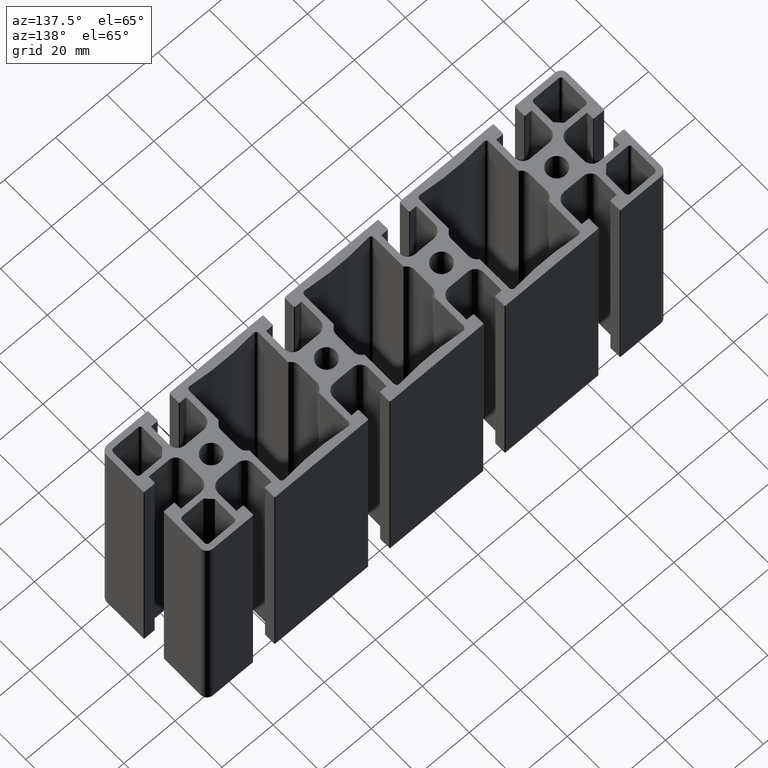
[diagram: clean part render]
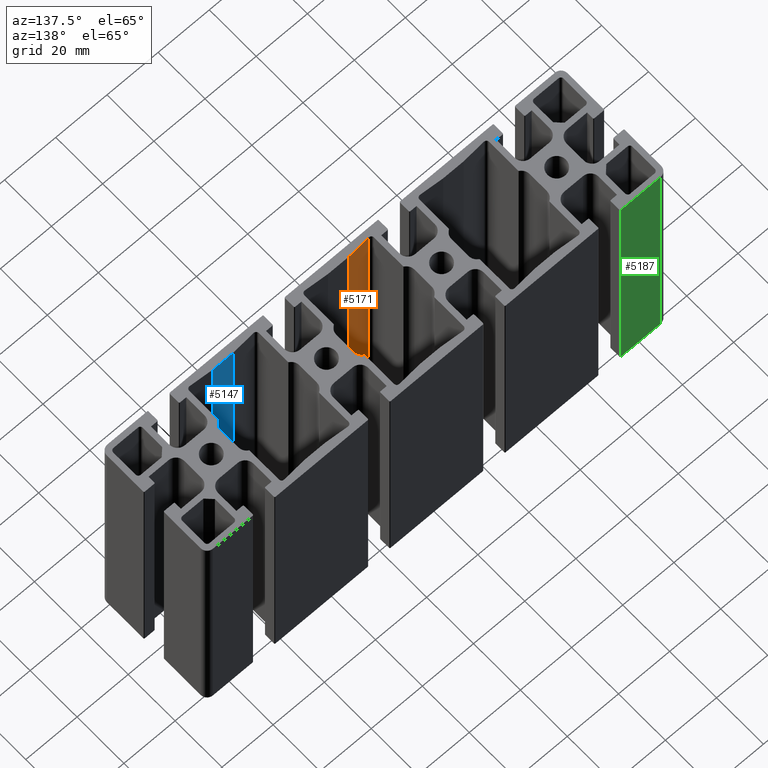
[diagram: same view with three faces highlighted in distinct colors, each labeled with its STEP entity id]
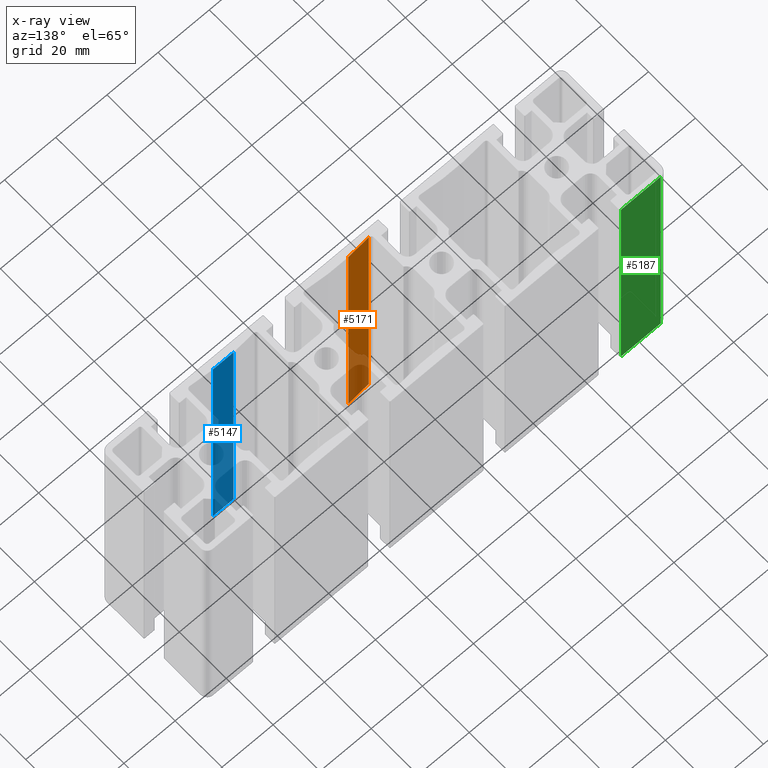
[diagram: x-ray of the same camera — body ghosted, the three highlighted faces saturated]
A machine part, auxiliary view with three faces highlighted in distinct colors.
The next image is the same camera in x-ray (body ghosted, the three faces saturated) — at least one of them is partly hidden behind the body in this view.
Their STEP definitions:

[orange] entity #5171 — the highlighted planar face has unit normal (0.0767, -0.9971, 0).
#619=FACE_OUTER_BOUND('',#881,.T.);
#881=EDGE_LOOP('',(#4183,#4184,#4185,#4186));
#1409=LINE('',#8613,#1941);
#1410=LINE('',#8617,#1942);
#1411=LINE('',#8619,#1943);
#1412=LINE('',#8620,#1944);
#1941=VECTOR('',#7065,100.);
#1942=VECTOR('',#7070,8.54847544709788);
#1943=VECTOR('',#7071,100.);
#1944=VECTOR('',#7072,8.54847544709788);
#2475=VERTEX_POINT('',#8610);
#2476=VERTEX_POINT('',#8612);
#2477=VERTEX_POINT('',#8616);
#2478=VERTEX_POINT('',#8618);
#3202=EDGE_CURVE('',#2476,#2475,#1409,.T.);
#3204=EDGE_CURVE('',#2477,#2475,#1410,.T.);
#3205=EDGE_CURVE('',#2478,#2477,#1411,.T.);
#3206=EDGE_CURVE('',#2476,#2478,#1412,.T.);
#4183=ORIENTED_EDGE('',*,*,#3204,.F.);
#4184=ORIENTED_EDGE('',*,*,#3205,.F.);
#4185=ORIENTED_EDGE('',*,*,#3206,.F.);
#4186=ORIENTED_EDGE('',*,*,#3202,.T.);
#4920=PLANE('',#5649);
#5171=ADVANCED_FACE('',(#619),#4920,.F.);
#5649=AXIS2_PLACEMENT_3D('',#8615,#7068,#7069);
#7065=DIRECTION('',(0.,0.,1.));
#7068=DIRECTION('center_axis',(0.0767190281268192,-0.99705275222692,0.));
#7069=DIRECTION('ref_axis',(0.,0.,-1.));
#7070=DIRECTION('',(-0.99705275222692,-0.0767190281268192,0.));
#7071=DIRECTION('',(0.,0.,1.));
#7072=DIRECTION('',(0.99705275222692,0.0767190281268192,0.));
#8610=CARTESIAN_POINT('',(-12.5232809718832,-20.1558307282573,100.));
#8612=CARTESIAN_POINT('',(-12.5232809718832,-20.1558307282573,0.));
#8613=CARTESIAN_POINT('',(-12.5232809718832,-20.1558307282573,0.));
#8615=CARTESIAN_POINT('Origin',(-4.00000000000996,-19.49999999999,0.));
#8616=CARTESIAN_POINT('',(-4.00000000000996,-19.49999999999,100.));
#8617=CARTESIAN_POINT('',(-1.26596566667415,-19.2896275232576,100.));
#8618=CARTESIAN_POINT('',(-4.00000000000996,-19.49999999999,0.));
#8619=CARTESIAN_POINT('',(-4.00000000000996,-19.49999999999,0.));
#8620=CARTESIAN_POINT('',(-1.26596566667415,-19.2896275232576,0.));

[blue] entity #5147 — the highlighted planar face has unit normal (-0, -1, 0).
#595=FACE_OUTER_BOUND('',#857,.T.);
#857=EDGE_LOOP('',(#4087,#4088,#4089,#4090));
#1363=LINE('',#8470,#1895);
#1364=LINE('',#8473,#1896);
#1365=LINE('',#8475,#1897);
#1366=LINE('',#8476,#1898);
#1895=VECTOR('',#6921,100.);
#1896=VECTOR('',#6924,8.00000000000001);
#1897=VECTOR('',#6925,8.00000000000001);
#1898=VECTOR('',#6926,100.);
#2427=VERTEX_POINT('',#8466);
#2428=VERTEX_POINT('',#8468);
#2429=VERTEX_POINT('',#8472);
#2430=VERTEX_POINT('',#8474);
#3131=EDGE_CURVE('',#2428,#2427,#1363,.T.);
#3132=EDGE_CURVE('',#2427,#2429,#1364,.T.);
#3133=EDGE_CURVE('',#2430,#2428,#1365,.T.);
#3134=EDGE_CURVE('',#2430,#2429,#1366,.T.);
#4087=ORIENTED_EDGE('',*,*,#3132,.F.);
#4088=ORIENTED_EDGE('',*,*,#3131,.F.);
#4089=ORIENTED_EDGE('',*,*,#3133,.F.);
#4090=ORIENTED_EDGE('',*,*,#3134,.T.);
#4909=PLANE('',#5599);
#5147=ADVANCED_FACE('',(#595),#4909,.F.);
#5599=AXIS2_PLACEMENT_3D('',#8471,#6922,#6923);
#6921=DIRECTION('',(0.,0.,1.));
#6922=DIRECTION('center_axis',(-5.55111512312578E-16,-1.,0.));
#6923=DIRECTION('ref_axis',(0.,0.,-1.));
#6924=DIRECTION('',(-1.,5.55111512312578E-16,0.));
#6925=DIRECTION('',(1.,-5.55111512312578E-16,0.));
#6926=DIRECTION('',(0.,0.,1.));
#8466=CARTESIAN_POINT('',(49.00000000001,-19.49999999999,100.));
#8468=CARTESIAN_POINT('',(49.00000000001,-19.49999999999,0.));
#8470=CARTESIAN_POINT('',(49.00000000001,-19.49999999999,0.));
#8471=CARTESIAN_POINT('Origin',(49.00000000001,-19.49999999999,0.));
#8472=CARTESIAN_POINT('',(41.00000000001,-19.49999999999,100.));
#8473=CARTESIAN_POINT('',(24.500000000005,-19.49999999999,100.));
#8474=CARTESIAN_POINT('',(41.00000000001,-19.49999999999,0.));
#8475=CARTESIAN_POINT('',(24.500000000005,-19.49999999999,0.));
#8476=CARTESIAN_POINT('',(41.00000000001,-19.49999999999,0.));

[green] entity #5187 — the highlighted planar face has unit normal (0, 1, 0).
#635=FACE_OUTER_BOUND('',#897,.T.);
#897=EDGE_LOOP('',(#4247,#4248,#4249,#4250));
#1046=LINE('',#7544,#1578);
#1448=LINE('',#8701,#1980);
#1449=LINE('',#8703,#1981);
#1450=LINE('',#8704,#1982);
#1578=VECTOR('',#6022,100.);
#1980=VECTOR('',#7152,15.5499999999826);
#1981=VECTOR('',#7153,100.);
#1982=VECTOR('',#7154,15.5499999999826);
#2109=VERTEX_POINT('',#7540);
#2110=VERTEX_POINT('',#7542);
#2501=VERTEX_POINT('',#8700);
#2502=VERTEX_POINT('',#8702);
#2674=EDGE_CURVE('',#2109,#2110,#1046,.T.);
#3248=EDGE_CURVE('',#2501,#2110,#1448,.T.);
#3249=EDGE_CURVE('',#2501,#2502,#1449,.T.);
#3250=EDGE_CURVE('',#2502,#2109,#1450,.T.);
#4247=ORIENTED_EDGE('',*,*,#2674,.T.);
#4248=ORIENTED_EDGE('',*,*,#3248,.F.);
#4249=ORIENTED_EDGE('',*,*,#3249,.T.);
#4250=ORIENTED_EDGE('',*,*,#3250,.T.);
#4933=PLANE('',#5671);
#5187=ADVANCED_FACE('',(#635),#4933,.T.);
#5671=AXIS2_PLACEMENT_3D('',#8699,#7150,#7151);
#6022=DIRECTION('',(0.,0.,-1.));
#7150=DIRECTION('center_axis',(0.,1.,0.));
#7151=DIRECTION('ref_axis',(-1.,0.,0.));
#7152=DIRECTION('',(1.,0.,0.));
#7153=DIRECTION('',(0.,0.,1.));
#7154=DIRECTION('',(1.,0.,0.));
#7540=CARTESIAN_POINT('',(-71.9500000000174,22.5,100.));
#7542=CARTESIAN_POINT('',(-71.9500000000174,22.5,0.));
#7544=CARTESIAN_POINT('',(-71.9500000000174,22.5,0.));
#8699=CARTESIAN_POINT('Origin',(87.5,22.5,0.));
#8700=CARTESIAN_POINT('',(-87.5,22.5,0.));
#8701=CARTESIAN_POINT('',(43.75,22.5,0.));
#8702=CARTESIAN_POINT('',(-87.5,22.5,100.));
#8703=CARTESIAN_POINT('',(-87.5,22.5,0.));
#8704=CARTESIAN_POINT('',(43.75,22.5,100.));